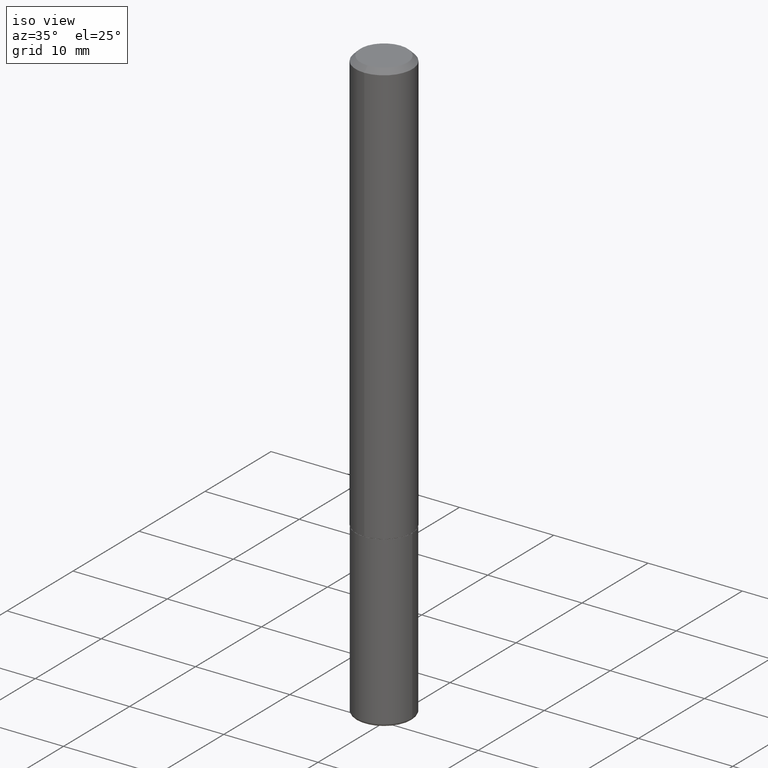
[diagram: clean part render]
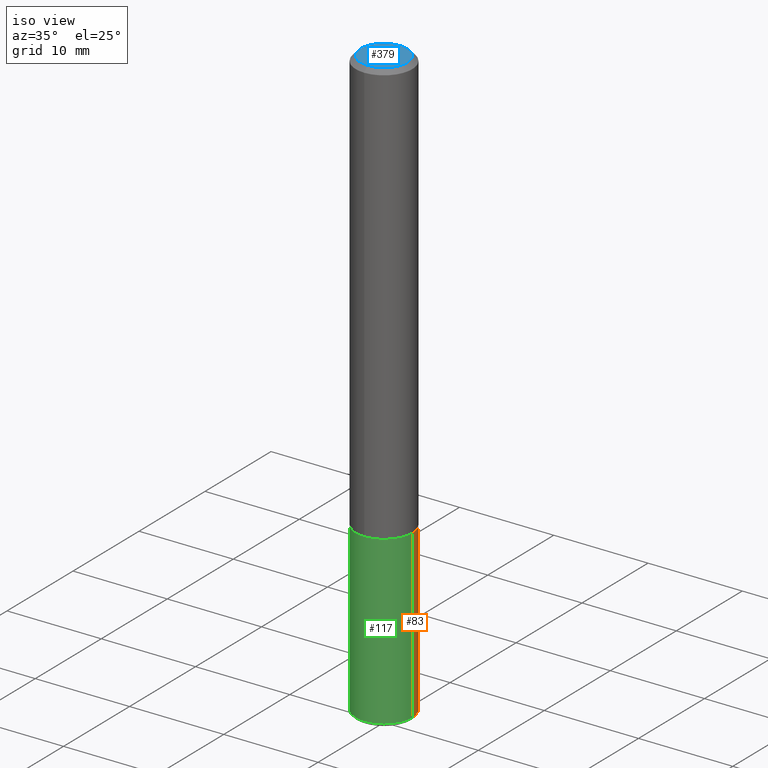
[diagram: same view with three faces highlighted in distinct colors, each labeled with its STEP entity id]
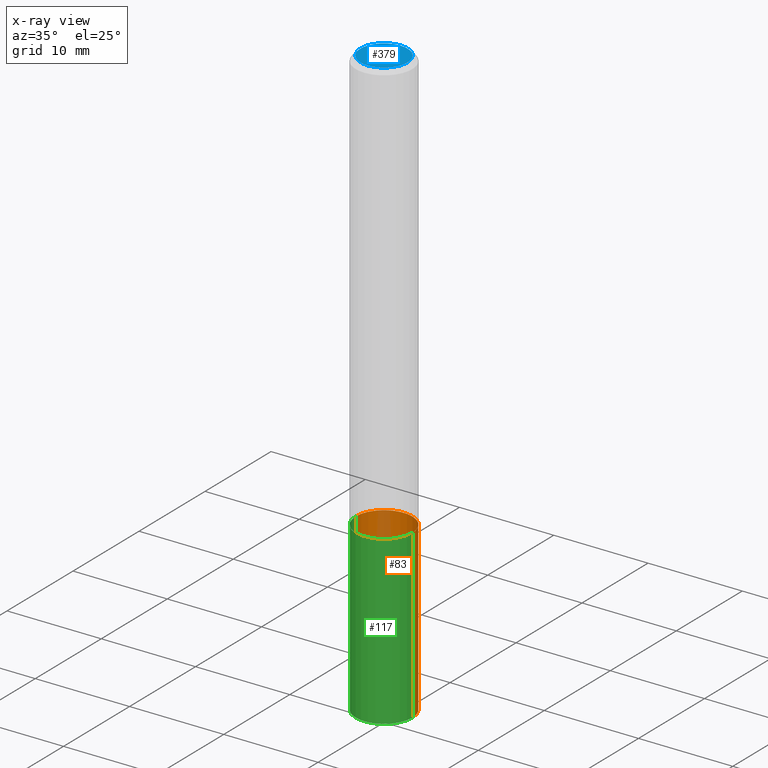
[diagram: x-ray of the same camera — body ghosted, the three highlighted faces saturated]
A machine part, iso view with three faces highlighted in distinct colors.
The next image is the same camera in x-ray (body ghosted, the three faces saturated) — at least one of them is partly hidden behind the body in this view.
Their STEP definitions:

[orange] entity #83 — the highlighted cylindrical surface (edge-blend (fillet) strip) has radius 2.9997 mm, axis along (-0, 0, 1).
#9 = DIRECTION ( 'NONE',  ( 1.000000000000000000, -6.982962677686266711E-15, 4.876176775795936353E-29 ) ) ;
#10 = CARTESIAN_POINT ( 'NONE',  ( -0.1180999999999999966, -6.562964041481733724E-15, -1.771600000000000286 ) ) ;
#38 = VECTOR ( 'NONE', #272, 39.37007874015748143 ) ;
#42 = CARTESIAN_POINT ( 'NONE',  ( 0.000000000000000000, 0.000000000000000000, 0.000000000000000000 ) ) ;
#47 = AXIS2_PLACEMENT_3D ( 'NONE', #42, #174, #9 ) ;
#73 = FACE_OUTER_BOUND ( 'NONE', #141, .T. ) ;
#74 = CIRCLE ( 'NONE', #122, 0.1180999999999999966 ) ;
#77 = VERTEX_POINT ( 'NONE', #229 ) ;
#79 = VERTEX_POINT ( 'NONE', #359 ) ;
#81 = ORIENTED_EDGE ( 'NONE', *, *, #164, .F. ) ;
#83 = ADVANCED_FACE ( 'NONE', ( #73 ), #356, .T. ) ;
#90 = EDGE_CURVE ( 'NONE', #79, #363, #227, .T. ) ;
#97 = AXIS2_PLACEMENT_3D ( 'NONE', #325, #203, #307 ) ;
#106 = DIRECTION ( 'NONE',  ( -2.445468806185136877E-29, 3.491481338843145188E-15, 1.000000000000000000 ) ) ;
#112 = VERTEX_POINT ( 'NONE', #270 ) ;
#122 = AXIS2_PLACEMENT_3D ( 'NONE', #373, #169, #303 ) ;
#141 = EDGE_LOOP ( 'NONE', ( #209, #249, #199, #81 ) ) ;
#164 = EDGE_CURVE ( 'NONE', #77, #79, #358, .T. ) ;
#169 = DIRECTION ( 'NONE',  ( -2.445468806185136597E-29, 3.491481338843145583E-15, 1.000000000000000000 ) ) ;
#174 = DIRECTION ( 'NONE',  ( -2.445468806185136597E-29, 3.491481338843145583E-15, 1.000000000000000000 ) ) ;
#199 = ORIENTED_EDGE ( 'NONE', *, *, #90, .F. ) ;
#202 = CARTESIAN_POINT ( 'NONE',  ( 0.1180999999999999966, -8.246878922347480654E-16, 5.758764772215000440E-30 ) ) ;
#203 = DIRECTION ( 'NONE',  ( -2.445468806185136597E-29, 3.491481338843145583E-15, 1.000000000000000000 ) ) ;
#209 = ORIENTED_EDGE ( 'NONE', *, *, #349, .T. ) ;
#223 = EDGE_CURVE ( 'NONE', #112, #363, #405, .T. ) ;
#227 = CIRCLE ( 'NONE', #97, 0.1180999999999999966 ) ;
#229 = CARTESIAN_POINT ( 'NONE',  ( 0.1181000000000001632, -9.443409577169056114E-15, -2.468500000000000139 ) ) ;
#249 = ORIENTED_EDGE ( 'NONE', *, *, #223, .T. ) ;
#270 = CARTESIAN_POINT ( 'NONE',  ( -0.1181000000000001632, -7.779570714001625710E-15, -2.468500000000000139 ) ) ;
#272 = DIRECTION ( 'NONE',  ( -2.445468806185136877E-29, 3.491481338843145188E-15, 1.000000000000000000 ) ) ;
#303 = DIRECTION ( 'NONE',  ( 1.000000000000000000, -6.982962677686265133E-15, 0.000000000000000000 ) ) ;
#307 = DIRECTION ( 'NONE',  ( 1.000000000000000000, -6.982962677686265133E-15, 0.000000000000000000 ) ) ;
#325 = CARTESIAN_POINT ( 'NONE',  ( 4.332392537037588763E-29, -6.185508339894517569E-15, -1.771600000000000286 ) ) ;
#349 = EDGE_CURVE ( 'NONE', #77, #112, #74, .T. ) ;
#356 = CYLINDRICAL_SURFACE ( 'NONE', #47, 0.1180999999999999966 ) ;
#358 = LINE ( 'NONE', #202, #38 ) ;
#359 = CARTESIAN_POINT ( 'NONE',  ( 0.1180999999999999966, -7.010196232129265043E-15, -1.771600000000000286 ) ) ;
#363 = VERTEX_POINT ( 'NONE', #10 ) ;
#373 = CARTESIAN_POINT ( 'NONE',  ( 6.036639748068010694E-29, -8.618721684934306273E-15, -2.468500000000000139 ) ) ;
#380 = CARTESIAN_POINT ( 'NONE',  ( -0.1180999999999999966, 8.391509709326782957E-16, -5.809262341591043784E-30 ) ) ;
#400 = VECTOR ( 'NONE', #106, 39.37007874015748143 ) ;
#405 = LINE ( 'NONE', #380, #400 ) ;

[blue] entity #379 — the highlighted planar face has unit normal (0, -0, -1).
#12 = VERTEX_POINT ( 'NONE', #94 ) ;
#63 = EDGE_CURVE ( 'NONE', #295, #12, #322, .T. ) ;
#75 = ORIENTED_EDGE ( 'NONE', *, *, #63, .T. ) ;
#94 = CARTESIAN_POINT ( 'NONE',  ( 7.548582654578847672E-16, 0.09809999999999975684, -8.213505744438662948E-17 ) ) ;
#98 = DIRECTION ( 'NONE',  ( -6.982962677686265922E-15, -1.000000000000000000, 3.494674881071397705E-15 ) ) ;
#105 = DIRECTION ( 'NONE',  ( 2.443238767566186578E-29, -3.494674881071397310E-15, -1.000000000000000000 ) ) ;
#134 = EDGE_CURVE ( 'NONE', #12, #295, #418, .T. ) ;
#135 = ORIENTED_EDGE ( 'NONE', *, *, #134, .T. ) ;
#140 = AXIS2_PLACEMENT_3D ( 'NONE', #234, #299, #302 ) ;
#173 = CARTESIAN_POINT ( 'NONE',  ( 6.850286386810209760E-16, 0.09809999999999975684, -2.124813316387448711E-16 ) ) ;
#234 = CARTESIAN_POINT ( 'NONE',  ( -6.369341406389364514E-45, 9.110357005365375257E-31, 2.606925483887165818E-16 ) ) ;
#244 = PLANE ( 'NONE',  #269 ) ;
#256 = AXIS2_PLACEMENT_3D ( 'NONE', #300, #395, #98 ) ;
#269 = AXIS2_PLACEMENT_3D ( 'NONE', #173, #105, #369 ) ;
#295 = VERTEX_POINT ( 'NONE', #402 ) ;
#299 = DIRECTION ( 'NONE',  ( -2.443238767566187138E-29, 3.494674881071396916E-15, 1.000000000000000000 ) ) ;
#300 = CARTESIAN_POINT ( 'NONE',  ( -6.369341406389364514E-45, 9.110357005365375257E-31, 2.606925483887165818E-16 ) ) ;
#302 = DIRECTION ( 'NONE',  ( -6.982962677686265922E-15, -1.000000000000000000, 3.494674881071397705E-15 ) ) ;
#322 = CIRCLE ( 'NONE', #140, 0.09809999999999975684 ) ;
#362 = FACE_OUTER_BOUND ( 'NONE', #410, .T. ) ;
#369 = DIRECTION ( 'NONE',  ( 6.982962677686265922E-15, 1.000000000000000000, -3.494674881071397310E-15 ) ) ;
#379 = ADVANCED_FACE ( 'NONE', ( #362 ), #244, .F. ) ;
#395 = DIRECTION ( 'NONE',  ( -2.443238767566187138E-29, 3.494674881071396916E-15, 1.000000000000000000 ) ) ;
#402 = CARTESIAN_POINT ( 'NONE',  ( -7.416198335591014190E-16, -0.09809999999999975684, 6.035201542218197439E-16 ) ) ;
#410 = EDGE_LOOP ( 'NONE', ( #135, #75 ) ) ;
#418 = CIRCLE ( 'NONE', #256, 0.09809999999999975684 ) ;

[green] entity #117 — the highlighted cylindrical surface (edge-blend (fillet) strip) has radius 2.9997 mm, axis along (-0, 0, 1).
#1 = CIRCLE ( 'NONE', #157, 0.1180999999999999966 ) ;
#6 = DIRECTION ( 'NONE',  ( 1.000000000000000000, -6.982962677686265133E-15, 0.000000000000000000 ) ) ;
#8 = DIRECTION ( 'NONE',  ( 1.000000000000000000, -6.982962677686266711E-15, 4.876176775795936353E-29 ) ) ;
#10 = CARTESIAN_POINT ( 'NONE',  ( -0.1180999999999999966, -6.562964041481733724E-15, -1.771600000000000286 ) ) ;
#35 = EDGE_CURVE ( 'NONE', #112, #77, #1, .T. ) ;
#38 = VECTOR ( 'NONE', #272, 39.37007874015748143 ) ;
#39 = CARTESIAN_POINT ( 'NONE',  ( 0.000000000000000000, 0.000000000000000000, 0.000000000000000000 ) ) ;
#50 = EDGE_LOOP ( 'NONE', ( #376, #215, #231, #179 ) ) ;
#66 = AXIS2_PLACEMENT_3D ( 'NONE', #214, #342, #219 ) ;
#77 = VERTEX_POINT ( 'NONE', #229 ) ;
#79 = VERTEX_POINT ( 'NONE', #359 ) ;
#91 = AXIS2_PLACEMENT_3D ( 'NONE', #39, #304, #8 ) ;
#106 = DIRECTION ( 'NONE',  ( -2.445468806185136877E-29, 3.491481338843145188E-15, 1.000000000000000000 ) ) ;
#112 = VERTEX_POINT ( 'NONE', #270 ) ;
#117 = ADVANCED_FACE ( 'NONE', ( #198 ), #161, .T. ) ;
#133 = DIRECTION ( 'NONE',  ( -2.445468806185136597E-29, 3.491481338843145583E-15, 1.000000000000000000 ) ) ;
#157 = AXIS2_PLACEMENT_3D ( 'NONE', #397, #133, #6 ) ;
#161 = CYLINDRICAL_SURFACE ( 'NONE', #91, 0.1180999999999999966 ) ;
#164 = EDGE_CURVE ( 'NONE', #77, #79, #358, .T. ) ;
#179 = ORIENTED_EDGE ( 'NONE', *, *, #201, .F. ) ;
#198 = FACE_OUTER_BOUND ( 'NONE', #50, .T. ) ;
#201 = EDGE_CURVE ( 'NONE', #363, #79, #388, .T. ) ;
#202 = CARTESIAN_POINT ( 'NONE',  ( 0.1180999999999999966, -8.246878922347480654E-16, 5.758764772215000440E-30 ) ) ;
#214 = CARTESIAN_POINT ( 'NONE',  ( 4.332392537037588763E-29, -6.185508339894517569E-15, -1.771600000000000286 ) ) ;
#215 = ORIENTED_EDGE ( 'NONE', *, *, #35, .T. ) ;
#219 = DIRECTION ( 'NONE',  ( 1.000000000000000000, -6.982962677686265133E-15, 0.000000000000000000 ) ) ;
#223 = EDGE_CURVE ( 'NONE', #112, #363, #405, .T. ) ;
#229 = CARTESIAN_POINT ( 'NONE',  ( 0.1181000000000001632, -9.443409577169056114E-15, -2.468500000000000139 ) ) ;
#231 = ORIENTED_EDGE ( 'NONE', *, *, #164, .T. ) ;
#270 = CARTESIAN_POINT ( 'NONE',  ( -0.1181000000000001632, -7.779570714001625710E-15, -2.468500000000000139 ) ) ;
#272 = DIRECTION ( 'NONE',  ( -2.445468806185136877E-29, 3.491481338843145188E-15, 1.000000000000000000 ) ) ;
#304 = DIRECTION ( 'NONE',  ( -2.445468806185136597E-29, 3.491481338843145583E-15, 1.000000000000000000 ) ) ;
#342 = DIRECTION ( 'NONE',  ( -2.445468806185136597E-29, 3.491481338843145583E-15, 1.000000000000000000 ) ) ;
#358 = LINE ( 'NONE', #202, #38 ) ;
#359 = CARTESIAN_POINT ( 'NONE',  ( 0.1180999999999999966, -7.010196232129265043E-15, -1.771600000000000286 ) ) ;
#363 = VERTEX_POINT ( 'NONE', #10 ) ;
#376 = ORIENTED_EDGE ( 'NONE', *, *, #223, .F. ) ;
#380 = CARTESIAN_POINT ( 'NONE',  ( -0.1180999999999999966, 8.391509709326782957E-16, -5.809262341591043784E-30 ) ) ;
#388 = CIRCLE ( 'NONE', #66, 0.1180999999999999966 ) ;
#397 = CARTESIAN_POINT ( 'NONE',  ( 6.036639748068010694E-29, -8.618721684934306273E-15, -2.468500000000000139 ) ) ;
#400 = VECTOR ( 'NONE', #106, 39.37007874015748143 ) ;
#405 = LINE ( 'NONE', #380, #400 ) ;